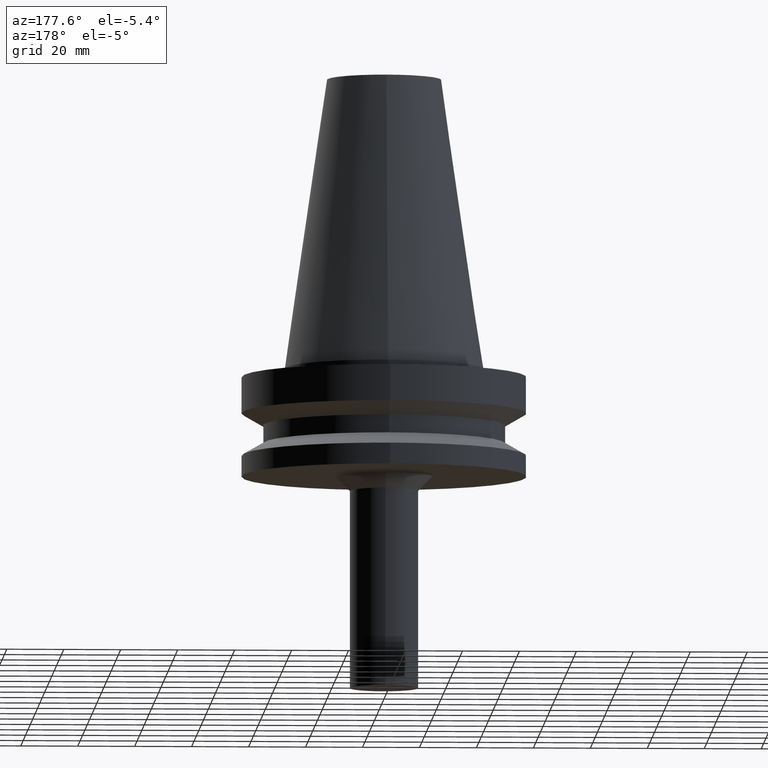
[diagram: clean part render]
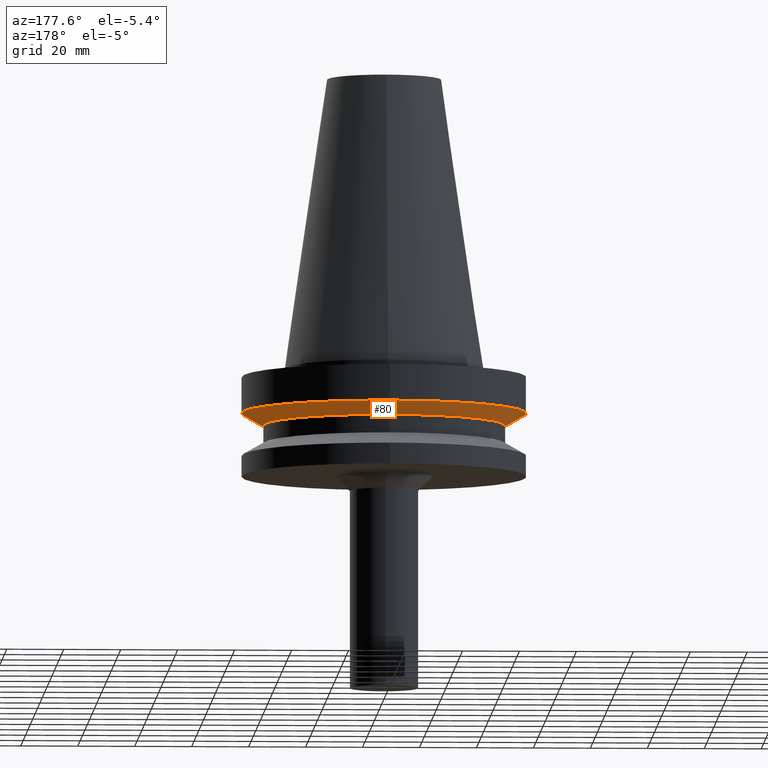
[diagram: same view with one face highlighted and labeled with its STEP entity id]
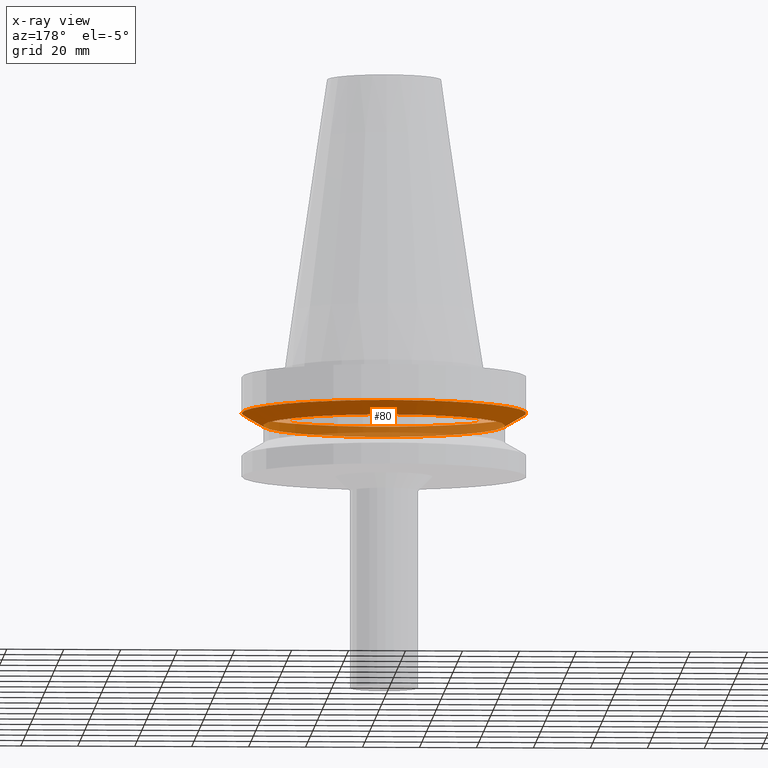
[diagram: x-ray of the same camera — body ghosted, the highlighted face saturated]
A machine part, auxiliary view. The second image highlights one B-rep face of the part: STEP entity #80.
The next image is the same camera in x-ray: the body ghosted, the highlighted face saturated — about 36% of this face is hidden behind the body in this view.
In plain terms, the highlighted conical surface has half-angle 60 deg.
Its self-contained STEP definition (entity closure, byte-faithful):
#80=ADVANCED_FACE('',(#103,#104),#105,.T.);
#103=FACE_BOUND('',#140,.T.);
#104=FACE_BOUND('',#141,.T.);
#105=CONICAL_SURFACE('',#142,46.25,1.04719755108882);
#140=EDGE_LOOP('',(#187));
#141=EDGE_LOOP('',(#188));
#142=AXIS2_PLACEMENT_3D('',#189,#190,#191);
#187=ORIENTED_EDGE('',*,*,#231,.F.);
#188=ORIENTED_EDGE('',*,*,#230,.T.);
#189=CARTESIAN_POINT('',(1.09391964220428E-015,2.18783928440857E-015,-17.86506351));
#190=DIRECTION('',(-6.12323399573676E-017,-1.22464679914679E-016,1.0));
#191=DIRECTION('',(-1.23259516440783E-032,1.0,1.22464679914679E-016));
#230=EDGE_CURVE('',#246,#246,#247,.T.);
#231=EDGE_CURVE('',#248,#248,#249,.T.);
#246=VERTEX_POINT('',#270);
#247=CIRCLE('',#271,50.0);
#248=VERTEX_POINT('',#272);
#249=CIRCLE('',#273,42.5);
#270=CARTESIAN_POINT('',(9.61347737330672E-016,50.0,-15.7));
#271=AXIS2_PLACEMENT_3D('',#298,#299,#300);
#272=CARTESIAN_POINT('',(1.2264915470779E-015,42.5,-20.03012702));
#273=AXIS2_PLACEMENT_3D('',#301,#302,#303);
#298=CARTESIAN_POINT('',(9.61347737330673E-016,1.92269547466134E-015,-15.7));
#299=DIRECTION('',(6.12323399573677E-017,1.22464679914672E-016,-1.0));
#300=DIRECTION('',(-1.23259516440783E-032,1.0,1.22464679914672E-016));
#301=CARTESIAN_POINT('',(1.2264915470779E-015,2.45298309415579E-015,-20.03012702));
#302=DIRECTION('',(6.12323399573677E-017,1.22464679914687E-016,-1.0));
#303=DIRECTION('',(-1.23259516440783E-032,1.0,1.22464679914687E-016));